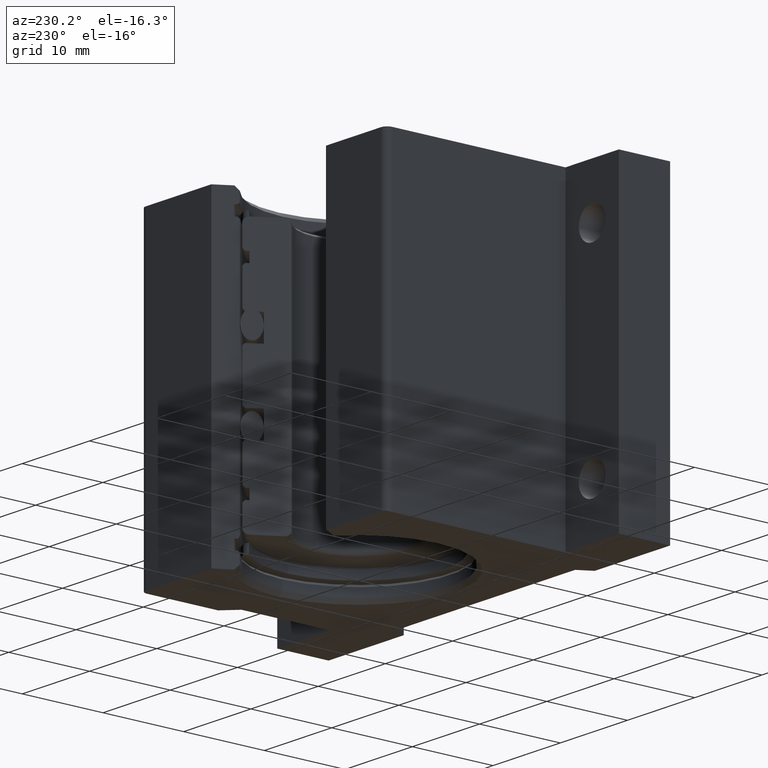
[diagram: clean part render]
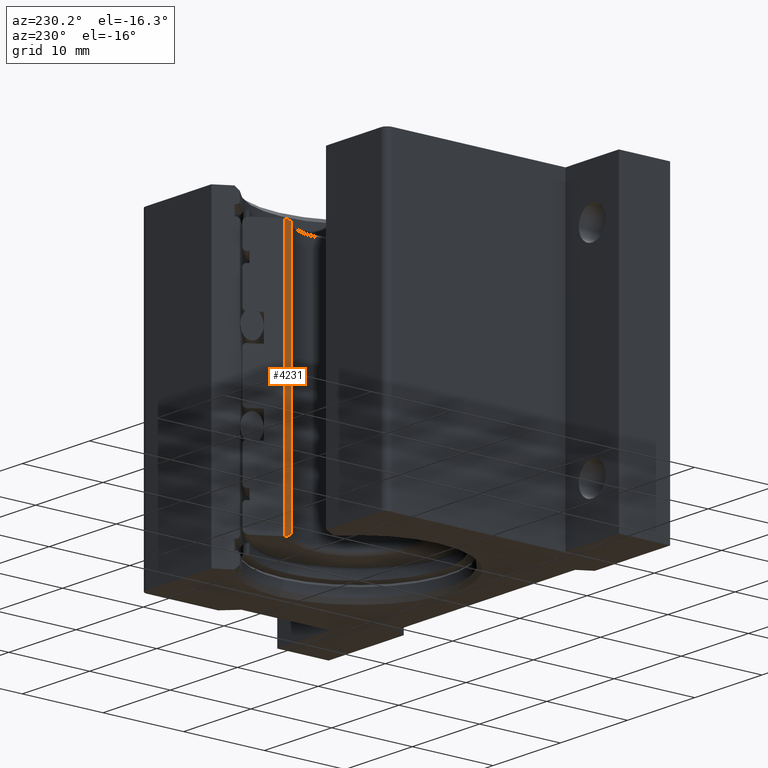
[diagram: same view with one face highlighted and labeled with its STEP entity id]
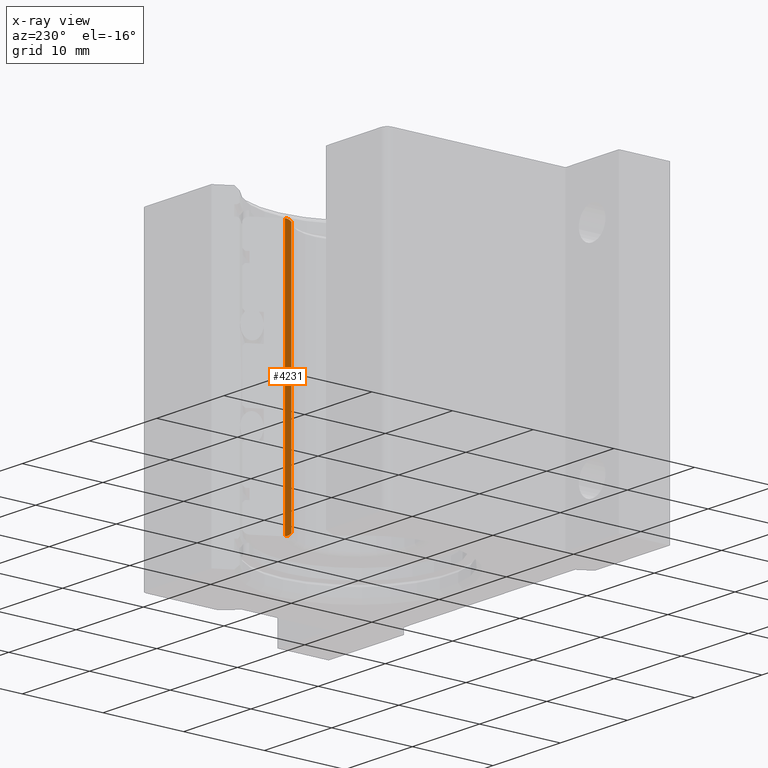
[diagram: x-ray of the same camera — body ghosted, the highlighted face saturated]
A machine part, auxiliary view. The second image highlights one B-rep face of the part: STEP entity #4231.
The next image is the same camera in x-ray: the body ghosted, the highlighted face saturated — about 0% of this face is hidden behind the body in this view.
In plain terms, the highlighted planar face has unit normal (0.866, -0.5, 0).
Its self-contained STEP definition (entity closure, byte-faithful):
#495 = EDGE_CURVE ( 'NONE', #1050, #1215, #5063, .T. ) ;
#702 = ORIENTED_EDGE ( 'NONE', *, *, #495, .F. ) ;
#878 = DIRECTION ( 'NONE',  ( 0.000000000000000000, 0.000000000000000000, 1.000000000000000000 ) ) ;
#1020 = AXIS2_PLACEMENT_3D ( 'NONE', #2494, #7435, #8331 ) ;
#1050 = VERTEX_POINT ( 'NONE', #9711 ) ;
#1215 = VERTEX_POINT ( 'NONE', #5151 ) ;
#1362 = CARTESIAN_POINT ( 'NONE',  ( 0.1688860082560865727, 0.2182968534251583659, -0.6212341520640487502 ) ) ;
#2318 = ORIENTED_EDGE ( 'NONE', *, *, #9409, .T. ) ;
#2494 = CARTESIAN_POINT ( 'NONE',  ( 0.1688860082560865727, 0.2182968534251583659, -0.6212341520640487502 ) ) ;
#2508 = EDGE_CURVE ( 'NONE', #6744, #1050, #9918, .T. ) ;
#2768 = CARTESIAN_POINT ( 'NONE',  ( 0.1688860082560865727, 0.2182968534251583659, 0.6212341520640487502 ) ) ;
#3466 = CARTESIAN_POINT ( 'NONE',  ( 0.1565000000000000002, 0.1968436578226487321, -0.6070534806292807728 ) ) ;
#3581 = CARTESIAN_POINT ( 'NONE',  ( 0.1688860082560865727, 0.2182968534251583659, -0.6212341520640487502 ) ) ;
#3868 = LINE ( 'NONE', #7207, #5961 ) ;
#4179 = CARTESIAN_POINT ( 'NONE',  ( 0.1688860082560865727, 0.2182968534251583659, -0.6212341520640487502 ) ) ;
#4231 = ADVANCED_FACE ( 'NONE', ( #10595 ), #8284, .F. ) ;
#4568 = EDGE_LOOP ( 'NONE', ( #5265, #2318, #702, #7413 ) ) ;
#5063 = B_SPLINE_CURVE_WITH_KNOTS ( 'NONE', 3,
 ( #2768, #6055, #9343, #8488 ),
 .UNSPECIFIED., .F., .F.,
 ( 4, 4 ),
 ( 2.277938103354167691E-07, 0.0007509806391167064398 ),
 .UNSPECIFIED. ) ;
#5151 = CARTESIAN_POINT ( 'NONE',  ( 0.1565000000000000002, 0.1968436578226487321, 0.6070534806292806618 ) ) ;
#5265 = ORIENTED_EDGE ( 'NONE', *, *, #8122, .T. ) ;
#5804 = VERTEX_POINT ( 'NONE', #6507 ) ;
#5961 = VECTOR ( 'NONE', #10579, 39.37007874015748143 ) ;
#6055 = CARTESIAN_POINT ( 'NONE',  ( 0.1638919177847064923, 0.2096468349911324303, 0.6209123140272299057 ) ) ;
#6507 = CARTESIAN_POINT ( 'NONE',  ( 0.1565000000000000002, 0.1968436578226487321, -0.6070534806292807728 ) ) ;
#6744 = VERTEX_POINT ( 'NONE', #1362 ) ;
#6767 = VECTOR ( 'NONE', #878, 39.37007874015748143 ) ;
#7207 = CARTESIAN_POINT ( 'NONE',  ( 0.1565000000000000002, 0.1968436578226487321, -0.6212341520640487502 ) ) ;
#7258 = B_SPLINE_CURVE_WITH_KNOTS ( 'NONE', 3,
 ( #3581, #8558, #10181, #3466 ),
 .UNSPECIFIED., .F., .F.,
 ( 4, 4 ),
 ( 2.277938103354167691E-07, 0.0007509806391167035125 ),
 .UNSPECIFIED. ) ;
#7413 = ORIENTED_EDGE ( 'NONE', *, *, #2508, .F. ) ;
#7435 = DIRECTION ( 'NONE',  ( 0.8660254037844397068, -0.4999999999999981681, 1.110223024625152719E-16 ) ) ;
#8122 = EDGE_CURVE ( 'NONE', #6744, #5804, #7258, .T. ) ;
#8284 = PLANE ( 'NONE',  #1020 ) ;
#8331 = DIRECTION ( 'NONE',  ( -0.4999999999999981681, -0.8660254037844397068, 1.922962686383566528E-16 ) ) ;
#8488 = CARTESIAN_POINT ( 'NONE',  ( 0.1565000000000000002, 0.1968436578226487321, 0.6070534806292806618 ) ) ;
#8558 = CARTESIAN_POINT ( 'NONE',  ( 0.1638919177847064923, 0.2096468349911324580, -0.6209123140272299057 ) ) ;
#9343 = CARTESIAN_POINT ( 'NONE',  ( 0.1591534758162576335, 0.2014396127530622971, 0.6155228536645094284 ) ) ;
#9409 = EDGE_CURVE ( 'NONE', #5804, #1215, #3868, .T. ) ;
#9711 = CARTESIAN_POINT ( 'NONE',  ( 0.1688860082560865727, 0.2182968534251583659, 0.6212341520640487502 ) ) ;
#9918 = LINE ( 'NONE', #4179, #6767 ) ;
#10181 = CARTESIAN_POINT ( 'NONE',  ( 0.1591534758162576613, 0.2014396127530623248, -0.6155228536645094284 ) ) ;
#10579 = DIRECTION ( 'NONE',  ( 0.000000000000000000, 0.000000000000000000, 1.000000000000000000 ) ) ;
#10595 = FACE_OUTER_BOUND ( 'NONE', #4568, .T. ) ;